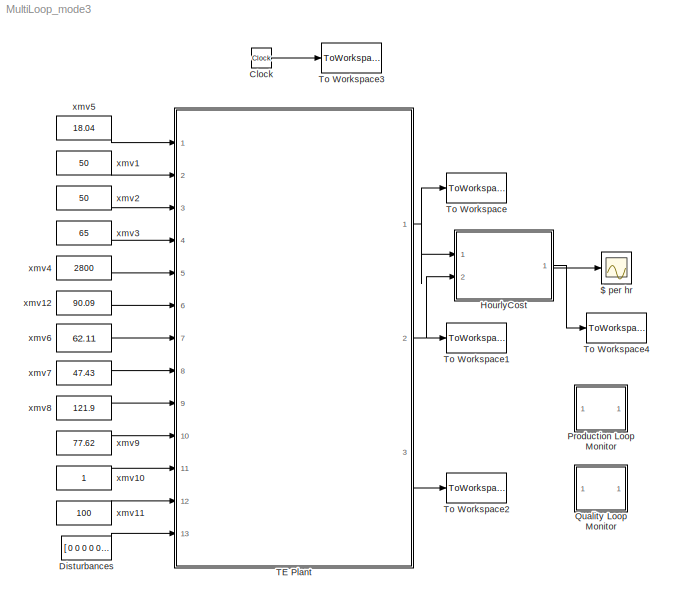
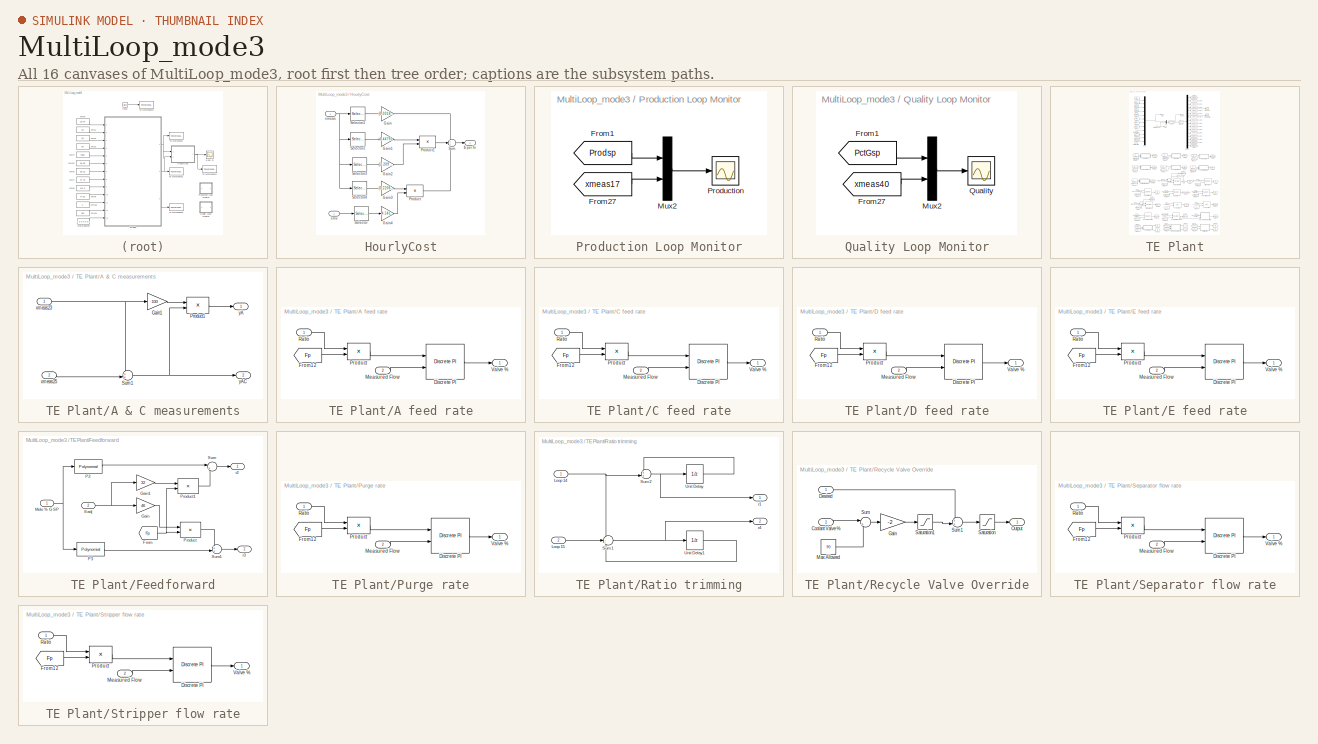
[diagram: thumbnail index - all 16 canvases of the model, root first then tree order]
MODEL MultiLoop_mode3
KIND model
CONFIG PreLoadFcn = Mode_3_Init
CONFIG StopFcn = TEplot
BLOCK [Scope] $ per hr
  DataFormat = Array
  LimitDataPoints = off
  NumInputPorts = 1
  Ports = [1]
  SampleInput = on
  SampleTime = Ts_save
  SaveName = OpCost
  YMax = 275
  YMin = 25
BLOCK [Clock] Clock
  Decimation = 10
BLOCK [Constant] Disturbances
  Value = [ 0 0 0 0 0 0 0 0 zeros(1,12)]
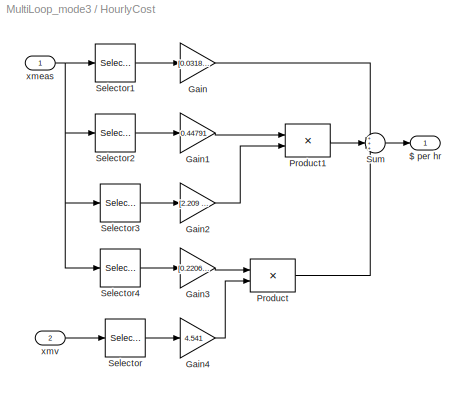
BLOCK [SubSystem] HourlyCost
  MinAlgLoopOccurrences = off
  Ports = [2, 1]
  RTWSystemCode = Auto
  TreatAsAtomicUnit = off
BLOCK [Outport] HourlyCost/$ per hr
  BusOutputAsStruct = off
  IconDisplay = Port number
BLOCK [Gain] HourlyCost/Gain
  Gain = [0.0318, 0.0536]
  Multiplication = Matrix(K*u)
BLOCK [Gain] HourlyCost/Gain1
  Gain = 0.44791
BLOCK [Gain] HourlyCost/Gain2
  Gain = [2.209 6.177 22.06 14.56 17.89 30.44 22.94]
  Multiplication = Matrix(K*u)
BLOCK [Gain] HourlyCost/Gain3
  Gain = [0.2206 0.1456 0.1789]
  Multiplication = Matrix(K*u)
BLOCK [Gain] HourlyCost/Gain4
  Gain = 4.541
BLOCK [Product] HourlyCost/Product
  InputSameDT = off
  Ports = [2, 1]
  RndMeth = Floor
BLOCK [Product] HourlyCost/Product1
  InputSameDT = off
  Ports = [2, 1]
  RndMeth = Floor
BLOCK [Selector] HourlyCost/Selector
  Elements = 8
  InputPortWidth = 12
  Ports = [1, 1]
BLOCK [Selector] HourlyCost/Selector1
  Elements = [19 20]
  InputPortWidth = 41
  Ports = [1, 1]
BLOCK [Selector] HourlyCost/Selector2
  Elements = [10]
  InputPortWidth = 41
  Ports = [1, 1]
BLOCK [Selector] HourlyCost/Selector3
  Elements = [29, 31:36]
  InputPortWidth = 41
  Ports = [1, 1]
BLOCK [Selector] HourlyCost/Selector4
  Elements = [37:39]
  InputPortWidth = 41
  Ports = [1, 1]
BLOCK [Sum] HourlyCost/Sum
  IconShape = round
  InputSameDT = off
  Inputs = +++
  OutDataTypeMode = Inherit via internal rule
  Ports = [3, 1]
BLOCK [Inport] HourlyCost/xmeas
  IconDisplay = Port number
  LatchInput = off
  Port = 1
  PortDimensions = 41
BLOCK [Inport] HourlyCost/xmv
  IconDisplay = Port number
  LatchInput = off
  Port = 2
  PortDimensions = 12
BLOCK [SubSystem] Production Loop Monitor
  MinAlgLoopOccurrences = off
  Ports = []
  RTWSystemCode = Auto
  TreatAsAtomicUnit = off
BLOCK [From] Production Loop Monitor/From1
  CloseFcn = tagdialog Close
  GotoTag = Prodsp
BLOCK [From] Production Loop Monitor/From27
  CloseFcn = tagdialog Close
  GotoTag = xmeas17
BLOCK [Mux] Production Loop Monitor/Mux2
  DisplayOption = bar
  Inputs = 2
  Ports = [2, 1]
BLOCK [Scope] Production Loop Monitor/Production
  DataFormat = StructureWithTime
  LimitDataPoints = off
  NumInputPorts = 1
  Ports = [1]
  SampleInput = on
  SampleTime = Ts_save
  SaveName = Production
  SaveToWorkspace = on
  YMax = 28
  YMin = 20
BLOCK [SubSystem] Quality Loop Monitor
  MinAlgLoopOccurrences = off
  Ports = []
  RTWSystemCode = Auto
  TreatAsAtomicUnit = off
BLOCK [From] Quality Loop Monitor/From1
  CloseFcn = tagdialog Close
  GotoTag = PctGsp
BLOCK [From] Quality Loop Monitor/From27
  CloseFcn = tagdialog Close
  GotoTag = xmeas40
BLOCK [Mux] Quality Loop Monitor/Mux2
  DisplayOption = bar
  Inputs = 2
  Ports = [2, 1]
BLOCK [Scope] Quality Loop Monitor/Quality
  DataFormat = StructureWithTime
  LimitDataPoints = off
  NumInputPorts = 1
  Ports = [1]
  SampleInput = on
  SampleTime = Ts_save
  SaveName = Quality
  SaveToWorkspace = on
  YMax = 60
  YMin = 40
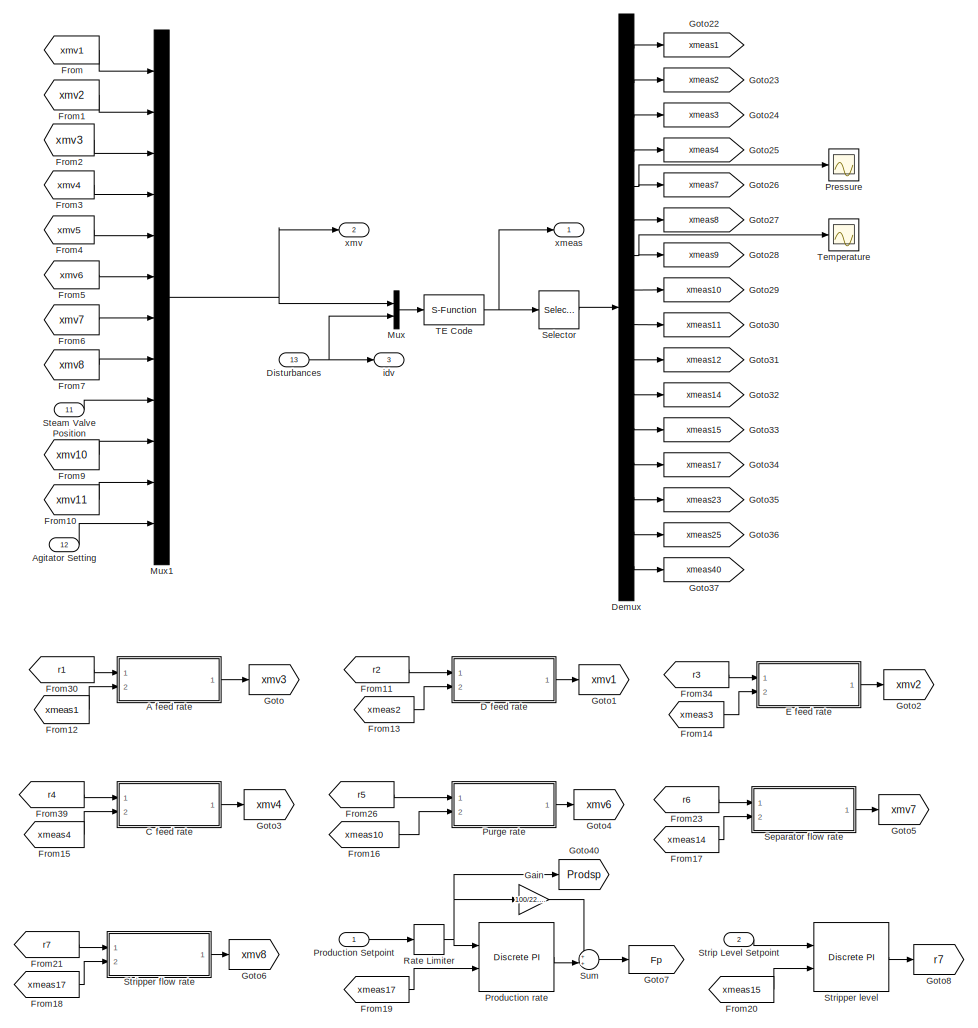
[diagram: TE Plant - part 1/2, full width, middle band]
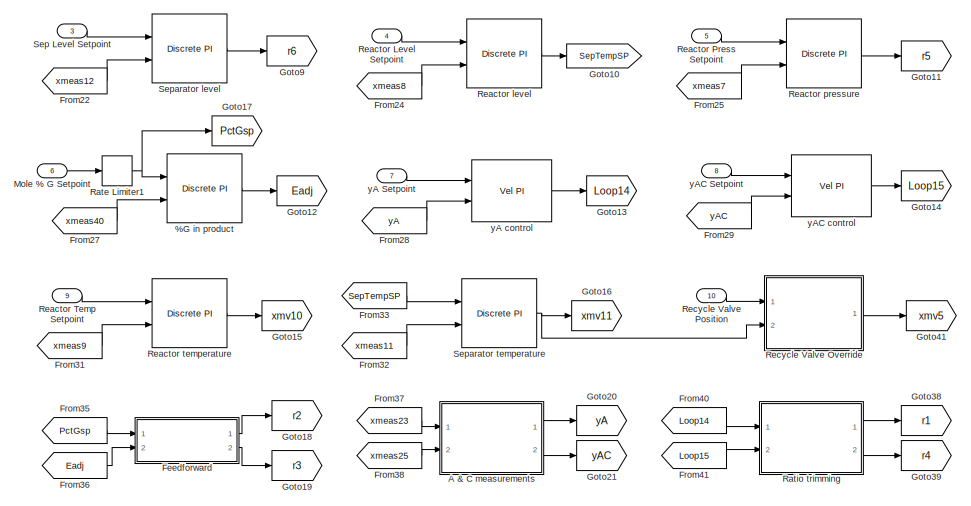
[diagram: TE Plant - part 2/2, full width, bottom band]
BLOCK [SubSystem] TE Plant
  MinAlgLoopOccurrences = off
  Ports = [13, 3]
  RTWSystemCode = Auto
  TreatAsAtomicUnit = off
BLOCK [Reference] TE Plant/%G in product  REF=TElib/Discrete PI
  Hi = inf
  Kc = -0.4
  Lo = -inf
  Ports = [2, 1]
  ShowPortLabels = on
  SourceBlock = TElib/Discrete PI
  SourceType = Unknown
  Ti = 100/60
  Ts = Ts_base
  x0 = Eadj_0
BLOCK [SubSystem] TE Plant/A & C measurements
  MinAlgLoopOccurrences = off
  Ports = [2, 2]
  RTWSystemCode = Auto
  TreatAsAtomicUnit = off
BLOCK [Gain] TE Plant/A & C measurements/Gain1
  Gain = 100
BLOCK [Product] TE Plant/A & C measurements/Product1
  InputSameDT = off
  Inputs = */
  Ports = [2, 1]
  RndMeth = Floor
BLOCK [Sum] TE Plant/A & C measurements/Sum1
  IconShape = round
  InputSameDT = off
  Inputs = ++|
  OutDataTypeMode = Inherit via internal rule
  Ports = [2, 1]
BLOCK [Inport] TE Plant/A & C measurements/xmeas23
  IconDisplay = Port number
  LatchInput = off
  Port = 1
BLOCK [Inport] TE Plant/A & C measurements/xmeas25
  IconDisplay = Port number
  LatchInput = off
  Port = 2
BLOCK [Outport] TE Plant/A & C measurements/yA
  BusOutputAsStruct = off
  IconDisplay = Port number
BLOCK [Outport] TE Plant/A & C measurements/yAC
  BusOutputAsStruct = off
  IconDisplay = Port number
  Port = 2
BLOCK [SubSystem] TE Plant/A feed rate
  MinAlgLoopOccurrences = off
  Ports = [2, 1]
  RTWSystemCode = Auto
  TreatAsAtomicUnit = off
BLOCK [Reference] TE Plant/A feed rate/Discrete PI  REF=TElib/Discrete PI
  Hi = 100
  Kc = 0.01
  Lo = 0
  Ports = [2, 1]
  ShowPortLabels = on
  SourceBlock = TElib/Discrete PI
  SourceType = Unknown
  Ti = 0.001/60
  Ts = Ts_base
  x0 = xmv3_0
BLOCK [From] TE Plant/A feed rate/From12
  CloseFcn = tagdialog Close
  GotoTag = Fp
BLOCK [Inport] TE Plant/A feed rate/Measured Flow
  IconDisplay = Port number
  LatchInput = off
  Port = 2
BLOCK [Product] TE Plant/A feed rate/Product
  InputSameDT = off
  Ports = [2, 1]
  RndMeth = Floor
BLOCK [Inport] TE Plant/A feed rate/Ratio
  IconDisplay = Port number
  LatchInput = off
  Port = 1
BLOCK [Outport] TE Plant/A feed rate/Valve %
  BusOutputAsStruct = off
  IconDisplay = Port number
BLOCK [Inport] TE Plant/Agitator Setting
  IconDisplay = Port number
  LatchInput = off
  Port = 12
BLOCK [SubSystem] TE Plant/C feed rate
  MinAlgLoopOccurrences = off
  Ports = [2, 1]
  RTWSystemCode = Auto
  TreatAsAtomicUnit = off
BLOCK [Reference] TE Plant/C feed rate/Discrete PI  REF=TElib/Discrete PI
  Hi = 100
  Kc = 0.003
  Lo = 0
  Ports = [2, 1]
  ShowPortLabels = on
  SourceBlock = TElib/Discrete PI
  SourceType = Unknown
  Ti = 0.001/60
  Ts = Ts_base
  x0 = xmv4_0
BLOCK [From] TE Plant/C feed rate/From12
  CloseFcn = tagdialog Close
  GotoTag = Fp
BLOCK [Inport] TE Plant/C feed rate/Measured Flow
  IconDisplay = Port number
  LatchInput = off
  Port = 2
BLOCK [Product] TE Plant/C feed rate/Product
  InputSameDT = off
  Ports = [2, 1]
  RndMeth = Floor
BLOCK [Inport] TE Plant/C feed rate/Ratio
  IconDisplay = Port number
  LatchInput = off
  Port = 1
BLOCK [Outport] TE Plant/C feed rate/Valve %
  BusOutputAsStruct = off
  IconDisplay = Port number
BLOCK [SubSystem] TE Plant/D feed rate
  MinAlgLoopOccurrences = off
  Ports = [2, 1]
  RTWSystemCode = Auto
  TreatAsAtomicUnit = off
BLOCK [Reference] TE Plant/D feed rate/Discrete PI  REF=TElib/Discrete PI
  Hi = 100
  Kc = 1.6e-6
  Lo = 0
  Ports = [2, 1]
  ShowPortLabels = on
  SourceBlock = TElib/Discrete PI
  SourceType = Unknown
  Ti = 0.001/60
  Ts = Ts_base
  x0 = xmv1_0
BLOCK [From] TE Plant/D feed rate/From12
  CloseFcn = tagdialog Close
  GotoTag = Fp
BLOCK [Inport] TE Plant/D feed rate/Measured Flow
  IconDisplay = Port number
  LatchInput = off
  Port = 2
BLOCK [Product] TE Plant/D feed rate/Product
  InputSameDT = off
  Ports = [2, 1]
  RndMeth = Floor
BLOCK [Inport] TE Plant/D feed rate/Ratio
  IconDisplay = Port number
  LatchInput = off
  Port = 1
BLOCK [Outport] TE Plant/D feed rate/Valve %
  BusOutputAsStruct = off
  IconDisplay = Port number
BLOCK [Demux] TE Plant/Demux
  Outputs = 16
  Ports = [1, 16]
BLOCK [Inport] TE Plant/Disturbances
  IconDisplay = Port number
  LatchInput = off
  Port = 13
BLOCK [SubSystem] TE Plant/E feed rate
  MinAlgLoopOccurrences = off
  Ports = [2, 1]
  RTWSystemCode = Auto
  TreatAsAtomicUnit = off
BLOCK [Reference] TE Plant/E feed rate/Discrete PI  REF=TElib/Discrete PI
  Hi = 100
  Kc = 1.8e-6
  Lo = 0
  Ports = [2, 1]
  ShowPortLabels = on
  SourceBlock = TElib/Discrete PI
  SourceType = Unknown
  Ti = 0.001/60
  Ts = Ts_base
  x0 = xmv2_0
BLOCK [From] TE Plant/E feed rate/From12
  CloseFcn = tagdialog Close
  GotoTag = Fp
BLOCK [Inport] TE Plant/E feed rate/Measured Flow
  IconDisplay = Port number
  LatchInput = off
  Port = 2
BLOCK [Product] TE Plant/E feed rate/Product
  InputSameDT = off
  Ports = [2, 1]
  RndMeth = Floor
BLOCK [Inport] TE Plant/E feed rate/Ratio
  IconDisplay = Port number
  LatchInput = off
  Port = 1
BLOCK [Outport] TE Plant/E feed rate/Valve %
  BusOutputAsStruct = off
  IconDisplay = Port number
BLOCK [SubSystem] TE Plant/Feedforward
  MinAlgLoopOccurrences = off
  Ports = [2, 2]
  RTWSystemCode = Auto
  TreatAsAtomicUnit = off
BLOCK [Inport] TE Plant/Feedforward/Eadj
  IconDisplay = Port number
  LatchInput = off
  Port = 2
BLOCK [From] TE Plant/Feedforward/From
  CloseFcn = tagdialog Close
  GotoTag = Fp
BLOCK [Gain] TE Plant/Feedforward/Gain
  Gain = 46
BLOCK [Gain] TE Plant/Feedforward/Gain1
  Gain = 32
BLOCK [Inport] TE Plant/Feedforward/Mole % G SP
  IconDisplay = Port number
  LatchInput = off
  Port = 1
BLOCK [Reference] TE Plant/Feedforward/P2  REF=simulink/Math\nOperations/Polynomial
  Ports = [1, 1]
  SourceBlock = simulink/Math\nOperations/Polynomial
  SourceType = Polyval
  coefs = [1.5192e-003  5.9446e-001  2.7690e-001]
BLOCK [Reference] TE Plant/Feedforward/P3  REF=simulink/Math\nOperations/Polynomial
  Ports = [1, 1]
  SourceBlock = simulink/Math\nOperations/Polynomial
  SourceType = Polyval
  coefs = [-1.1377e-003 -8.0893e-001  9.1060e+001]
BLOCK [Product] TE Plant/Feedforward/Product
  InputSameDT = off
  Inputs = */
  Ports = [2, 1]
  RndMeth = Floor
BLOCK [Product] TE Plant/Feedforward/Product1
  InputSameDT = off
  Inputs = */
  Ports = [2, 1]
  RndMeth = Floor
BLOCK [Sum] TE Plant/Feedforward/Sum
  IconShape = round
  InputSameDT = off
  Inputs = |+-
  OutDataTypeMode = Inherit via internal rule
  Ports = [2, 1]
BLOCK [Sum] TE Plant/Feedforward/Sum1
  IconShape = round
  InputSameDT = off
  Inputs = ++|
  OutDataTypeMode = Inherit via internal rule
  Ports = [2, 1]
BLOCK [Outport] TE Plant/Feedforward/r2
  BusOutputAsStruct = off
  IconDisplay = Port number
BLOCK [Outport] TE Plant/Feedforward/r3
  BusOutputAsStruct = off
  IconDisplay = Port number
  Port = 2
BLOCK [From] TE Plant/From
  CloseFcn = tagdialog Close
  GotoTag = xmv1
BLOCK [From] TE Plant/From1
  CloseFcn = tagdialog Close
  GotoTag = xmv2
BLOCK [From] TE Plant/From10
  CloseFcn = tagdialog Close
  GotoTag = xmv11
BLOCK [From] TE Plant/From11
  CloseFcn = tagdialog Close
  GotoTag = r2
BLOCK [From] TE Plant/From12
  CloseFcn = tagdialog Close
  GotoTag = xmeas1
BLOCK [From] TE Plant/From13
  CloseFcn = tagdialog Close
  GotoTag = xmeas2
BLOCK [From] TE Plant/From14
  CloseFcn = tagdialog Close
  GotoTag = xmeas3
BLOCK [From] TE Plant/From15
  CloseFcn = tagdialog Close
  GotoTag = xmeas4
BLOCK [From] TE Plant/From16
  CloseFcn = tagdialog Close
  GotoTag = xmeas10
BLOCK [From] TE Plant/From17
  CloseFcn = tagdialog Close
  GotoTag = xmeas14
BLOCK [From] TE Plant/From18
  CloseFcn = tagdialog Close
  GotoTag = xmeas17
BLOCK [From] TE Plant/From19
  CloseFcn = tagdialog Close
  GotoTag = xmeas17
BLOCK [From] TE Plant/From2
  CloseFcn = tagdialog Close
  GotoTag = xmv3
BLOCK [From] TE Plant/From20
  CloseFcn = tagdialog Close
  GotoTag = xmeas15
BLOCK [From] TE Plant/From21
  CloseFcn = tagdialog Close
  GotoTag = r7
BLOCK [From] TE Plant/From22
  CloseFcn = tagdialog Close
  GotoTag = xmeas12
BLOCK [From] TE Plant/From23
  CloseFcn = tagdialog Close
  GotoTag = r6
BLOCK [From] TE Plant/From24
  CloseFcn = tagdialog Close
  GotoTag = xmeas8
BLOCK [From] TE Plant/From25
  CloseFcn = tagdialog Close
  GotoTag = xmeas7
BLOCK [From] TE Plant/From26
  CloseFcn = tagdialog Close
  GotoTag = r5
BLOCK [From] TE Plant/From27
  CloseFcn = tagdialog Close
  GotoTag = xmeas40
BLOCK [From] TE Plant/From28
  CloseFcn = tagdialog Close
  GotoTag = yA
BLOCK [From] TE Plant/From29
  CloseFcn = tagdialog Close
  GotoTag = yAC
BLOCK [From] TE Plant/From3
  CloseFcn = tagdialog Close
  GotoTag = xmv4
BLOCK [From] TE Plant/From30
  CloseFcn = tagdialog Close
  GotoTag = r1
BLOCK [From] TE Plant/From31
  CloseFcn = tagdialog Close
  GotoTag = xmeas9
BLOCK [From] TE Plant/From32
  CloseFcn = tagdialog Close
  GotoTag = xmeas11
BLOCK [From] TE Plant/From33
  CloseFcn = tagdialog Close
  GotoTag = SepTempSP
BLOCK [From] TE Plant/From34
  CloseFcn = tagdialog Close
  GotoTag = r3
BLOCK [From] TE Plant/From35
  CloseFcn = tagdialog Close
  GotoTag = PctGsp
BLOCK [From] TE Plant/From36
  CloseFcn = tagdialog Close
  GotoTag = Eadj
BLOCK [From] TE Plant/From37
  CloseFcn = tagdialog Close
  GotoTag = xmeas23
BLOCK [From] TE Plant/From38
  CloseFcn = tagdialog Close
  GotoTag = xmeas25
BLOCK [From] TE Plant/From39
  CloseFcn = tagdialog Close
  GotoTag = r4
BLOCK [From] TE Plant/From4
  CloseFcn = tagdialog Close
  GotoTag = xmv5
BLOCK [From] TE Plant/From40
  CloseFcn = tagdialog Close
  GotoTag = Loop14
BLOCK [From] TE Plant/From41
  CloseFcn = tagdialog Close
  GotoTag = Loop15
BLOCK [From] TE Plant/From5
  CloseFcn = tagdialog Close
  GotoTag = xmv6
BLOCK [From] TE Plant/From6
  CloseFcn = tagdialog Close
  GotoTag = xmv7
BLOCK [From] TE Plant/From7
  CloseFcn = tagdialog Close
  GotoTag = xmv8
BLOCK [From] TE Plant/From9
  CloseFcn = tagdialog Close
  GotoTag = xmv10
BLOCK [Gain] TE Plant/Gain
  Gain = 100/22.89
BLOCK [Goto] TE Plant/Goto
  GotoTag = xmv3
  TagVisibility = local
BLOCK [Goto] TE Plant/Goto1
  GotoTag = xmv1
  TagVisibility = local
BLOCK [Goto] TE Plant/Goto10
  GotoTag = SepTempSP
  TagVisibility = local
BLOCK [Goto] TE Plant/Goto11
  GotoTag = r5
  TagVisibility = local
BLOCK [Goto] TE Plant/Goto12
  GotoTag = Eadj
  TagVisibility = local
BLOCK [Goto] TE Plant/Goto13
  GotoTag = Loop14
  TagVisibility = local
BLOCK [Goto] TE Plant/Goto14
  GotoTag = Loop15
  TagVisibility = local
BLOCK [Goto] TE Plant/Goto15
  GotoTag = xmv10
  TagVisibility = local
BLOCK [Goto] TE Plant/Goto16
  GotoTag = xmv11
  TagVisibility = local
BLOCK [Goto] TE Plant/Goto17
  GotoTag = PctGsp
  TagVisibility = global
BLOCK [Goto] TE Plant/Goto18
  GotoTag = r2
  TagVisibility = local
BLOCK [Goto] TE Plant/Goto19
  GotoTag = r3
  TagVisibility = local
BLOCK [Goto] TE Plant/Goto2
  GotoTag = xmv2
  TagVisibility = local
BLOCK [Goto] TE Plant/Goto20
  GotoTag = yA
  TagVisibility = local
BLOCK [Goto] TE Plant/Goto21
  GotoTag = yAC
  TagVisibility = local
BLOCK [Goto] TE Plant/Goto22
  GotoTag = xmeas1
  TagVisibility = local
BLOCK [Goto] TE Plant/Goto23
  GotoTag = xmeas2
  TagVisibility = local
BLOCK [Goto] TE Plant/Goto24
  GotoTag = xmeas3
  TagVisibility = local
BLOCK [Goto] TE Plant/Goto25
  GotoTag = xmeas4
  TagVisibility = local
BLOCK [Goto] TE Plant/Goto26
  GotoTag = xmeas7
  TagVisibility = local
BLOCK [Goto] TE Plant/Goto27
  GotoTag = xmeas8
  TagVisibility = local
BLOCK [Goto] TE Plant/Goto28
  GotoTag = xmeas9
  TagVisibility = local
BLOCK [Goto] TE Plant/Goto29
  GotoTag = xmeas10
  TagVisibility = local
BLOCK [Goto] TE Plant/Goto3
  GotoTag = xmv4
  TagVisibility = local
BLOCK [Goto] TE Plant/Goto30
  GotoTag = xmeas11
  TagVisibility = local
BLOCK [Goto] TE Plant/Goto31
  GotoTag = xmeas12
  TagVisibility = local
BLOCK [Goto] TE Plant/Goto32
  GotoTag = xmeas14
  TagVisibility = local
BLOCK [Goto] TE Plant/Goto33
  GotoTag = xmeas15
  TagVisibility = local
BLOCK [Goto] TE Plant/Goto34
  GotoTag = xmeas17
  TagVisibility = global
BLOCK [Goto] TE Plant/Goto35
  GotoTag = xmeas23
  TagVisibility = local
BLOCK [Goto] TE Plant/Goto36
  GotoTag = xmeas25
  TagVisibility = local
BLOCK [Goto] TE Plant/Goto37
  GotoTag = xmeas40
  TagVisibility = global
BLOCK [Goto] TE Plant/Goto38
  GotoTag = r1
  TagVisibility = local
BLOCK [Goto] TE Plant/Goto39
  GotoTag = r4
  TagVisibility = local
BLOCK [Goto] TE Plant/Goto4
  GotoTag = xmv6
  TagVisibility = local
BLOCK [Goto] TE Plant/Goto40
  GotoTag = Prodsp
  TagVisibility = global
BLOCK [Goto] TE Plant/Goto41
  GotoTag = xmv5
  TagVisibility = local
BLOCK [Goto] TE Plant/Goto5
  GotoTag = xmv7
  TagVisibility = local
BLOCK [Goto] TE Plant/Goto6
  GotoTag = xmv8
  TagVisibility = local
BLOCK [Goto] TE Plant/Goto7
  GotoTag = Fp
  TagVisibility = global
BLOCK [Goto] TE Plant/Goto8
  GotoTag = r7
  TagVisibility = local
BLOCK [Goto] TE Plant/Goto9
  GotoTag = r6
  TagVisibility = local
BLOCK [Inport] TE Plant/Mole % G Setpoint
  IconDisplay = Port number
  LatchInput = off
  Port = 6
BLOCK [Mux] TE Plant/Mux
  DisplayOption = bar
  Inputs = 2
  Ports = [2, 1]
BLOCK [Mux] TE Plant/Mux1
  DisplayOption = bar
  Inputs = 12
  Ports = [12, 1]
BLOCK [Scope] TE Plant/Pressure
  DataFormat = StructureWithTime
  LimitDataPoints = off
  NumInputPorts = 1
  Ports = [1]
  SampleInput = on
  SampleTime = Ts_save
  SaveName = ScopeData1
  YMax = 2900
  YMin = 2700
BLOCK [Inport] TE Plant/Production Setpoint
  IconDisplay = Port number
  LatchInput = off
  Port = 1
BLOCK [Reference] TE Plant/Production rate  REF=TElib/Discrete PI
  Hi = 30
  Kc = 3.2
  Lo = -30
  Ports = [2, 1]
  ShowPortLabels = on
  SourceBlock = TElib/Discrete PI
  SourceType = Unknown
  Ti = 120/60
  Ts = Ts_base
  x0 = 0
BLOCK [SubSystem] TE Plant/Purge rate
  MinAlgLoopOccurrences = off
  Ports = [2, 1]
  RTWSystemCode = Auto
  TreatAsAtomicUnit = off
BLOCK [Reference] TE Plant/Purge rate/Discrete PI  REF=TElib/Discrete PI
  Hi = 100
  Kc = 0.01
  Lo = 0
  Ports = [2, 1]
  ShowPortLabels = on
  SourceBlock = TElib/Discrete PI
  SourceType = Unknown
  Ti = 0.001/60
  Ts = Ts_base
  x0 = xmv6_0
BLOCK [From] TE Plant/Purge rate/From12
  CloseFcn = tagdialog Close
  GotoTag = Fp
BLOCK [Inport] TE Plant/Purge rate/Measured Flow
  IconDisplay = Port number
  LatchInput = off
  Port = 2
BLOCK [Product] TE Plant/Purge rate/Product
  InputSameDT = off
  Ports = [2, 1]
  RndMeth = Floor
BLOCK [Inport] TE Plant/Purge rate/Ratio
  IconDisplay = Port number
  LatchInput = off
  Port = 1
BLOCK [Outport] TE Plant/Purge rate/Valve %
  BusOutputAsStruct = off
  IconDisplay = Port number
BLOCK [RateLimiter] TE Plant/Rate Limiter
  FallingSlewLimit = -0.3*22.95/24
  RisingSlewLimit = 0.3*22.95/24
BLOCK [RateLimiter] TE Plant/Rate Limiter1
  FallingSlewLimit = -50/24
  RisingSlewLimit = 50/24
BLOCK [SubSystem] TE Plant/Ratio trimming
  MinAlgLoopOccurrences = off
  Ports = [2, 2]
  RTWSystemCode = Auto
  TreatAsAtomicUnit = off
BLOCK [Inport] TE Plant/Ratio trimming/Loop 14
  IconDisplay = Port number
  LatchInput = off
  Port = 1
BLOCK [Inport] TE Plant/Ratio trimming/Loop 15
  IconDisplay = Port number
  LatchInput = off
  Port = 2
BLOCK [Sum] TE Plant/Ratio trimming/Sum1
  IconShape = round
  InputSameDT = off
  Inputs = -++
  OutDataTypeMode = Inherit via internal rule
  Ports = [3, 1]
BLOCK [Sum] TE Plant/Ratio trimming/Sum2
  IconShape = round
  InputSameDT = off
  Inputs = ++|
  OutDataTypeMode = Inherit via internal rule
  Ports = [2, 1]
BLOCK [UnitDelay] TE Plant/Ratio trimming/Unit Delay
  SampleTime = 0.1
  X0 = r1_0
BLOCK [UnitDelay] TE Plant/Ratio trimming/Unit Delay1
  SampleTime = 0.1
  X0 = r4_0
BLOCK [Outport] TE Plant/Ratio trimming/r1
  BusOutputAsStruct = off
  IconDisplay = Port number
BLOCK [Outport] TE Plant/Ratio trimming/r4
  BusOutputAsStruct = off
  IconDisplay = Port number
  Port = 2
BLOCK [Inport] TE Plant/Reactor Level Setpoint
  IconDisplay = Port number
  LatchInput = off
  Port = 4
BLOCK [Inport] TE Plant/Reactor Press Setpoint
  IconDisplay = Port number
  LatchInput = off
  Port = 5
BLOCK [Inport] TE Plant/Reactor Temp Setpoint
  IconDisplay = Port number
  LatchInput = off
  Port = 9
BLOCK [Reference] TE Plant/Reactor level  REF=TElib/Discrete PI
  Hi = 120
  Kc = 0.8
  Lo = 0
  Ports = [2, 1]
  ShowPortLabels = on
  SourceBlock = TElib/Discrete PI
  SourceType = Unknown
  Ti = 60/60
  Ts = Ts_base
  x0 = SP17_0
BLOCK [Reference] TE Plant/Reactor pressure  REF=TElib/Discrete PI
  Hi = 100
  Kc = -1e-4
  Lo = 0
  Ports = [2, 1]
  ShowPortLabels = on
  SourceBlock = TElib/Discrete PI
  SourceType = Unknown
  Ti = 20/60
  Ts = Ts_base
  x0 = r5_0
BLOCK [Reference] TE Plant/Reactor temperature  REF=TElib/Discrete PI
  Hi = 100
  Kc = -8
  Lo = 0
  Ports = [2, 1]
  ShowPortLabels = on
  SourceBlock = TElib/Discrete PI
  SourceType = Unknown
  Ti = 7.5/60
  Ts = Ts_base
  x0 = xmv10_0
BLOCK [SubSystem] TE Plant/Recycle Valve Override
  AncestorBlock = TElib/Discrete PI
  MinAlgLoopOccurrences = off
  Ports = [2, 1]
  RTWSystemCode = Auto
  TreatAsAtomicUnit = off
BLOCK [Inport] TE Plant/Recycle Valve Override/Coolant Valve %
  IconDisplay = Port number
  LatchInput = off
  Port = 2
BLOCK [Inport] TE Plant/Recycle Valve Override/Desired
  IconDisplay = Port number
  LatchInput = off
  Port = 1
BLOCK [Gain] TE Plant/Recycle Valve Override/Gain
  Gain = -2
  OutDataTypeMode = Inherit via internal rule
  ParameterDataTypeMode = Inherit via internal rule
  SaturateOnIntegerOverflow = off
BLOCK [Constant] TE Plant/Recycle Valve Override/Max Allowed
  Value = 90
BLOCK [Outport] TE Plant/Recycle Valve Override/Output
  BusOutputAsStruct = off
  IconDisplay = Port number
BLOCK [Saturate] TE Plant/Recycle Valve Override/Saturation
  LowerLimit = 0
  UpperLimit = 100
BLOCK [Saturate] TE Plant/Recycle Valve Override/Saturation1
  LowerLimit = -Inf
  UpperLimit = 0
BLOCK [Sum] TE Plant/Recycle Valve Override/Sum
  IconShape = round
  InputSameDT = off
  Inputs = |+-
  OutDataTypeMode = Inherit via internal rule
  Ports = [2, 1]
BLOCK [Sum] TE Plant/Recycle Valve Override/Sum1
  IconShape = round
  InputSameDT = off
  Inputs = ++|
  OutDataTypeMode = Inherit via internal rule
  Ports = [2, 1]
  SaturateOnIntegerOverflow = off
BLOCK [Inport] TE Plant/Recycle Valve Position
  IconDisplay = Port number
  LatchInput = off
  Port = 10
BLOCK [Selector] TE Plant/Selector
  Elements = [1:4, 7:12, 14, 15, 17, 23, 25, 40]
  InputPortWidth = 41
  Ports = [1, 1]
BLOCK [Inport] TE Plant/Sep Level Setpoint
  IconDisplay = Port number
  LatchInput = off
  Port = 3
BLOCK [SubSystem] TE Plant/Separator flow rate
  MinAlgLoopOccurrences = off
  Ports = [2, 1]
  RTWSystemCode = Auto
  TreatAsAtomicUnit = off
BLOCK [Reference] TE Plant/Separator flow rate/Discrete PI  REF=TElib/Discrete PI
  Hi = 100
  Kc = 4e-4
  Lo = 0
  Ports = [2, 1]
  ShowPortLabels = on
  SourceBlock = TElib/Discrete PI
  SourceType = Unknown
  Ti = 0.001/60
  Ts = Ts_base
  x0 = xmv7_0
BLOCK [From] TE Plant/Separator flow rate/From12
  CloseFcn = tagdialog Close
  GotoTag = Fp
BLOCK [Inport] TE Plant/Separator flow rate/Measured Flow
  IconDisplay = Port number
  LatchInput = off
  Port = 2
BLOCK [Product] TE Plant/Separator flow rate/Product
  InputSameDT = off
  Ports = [2, 1]
  RndMeth = Floor
BLOCK [Inport] TE Plant/Separator flow rate/Ratio
  IconDisplay = Port number
  LatchInput = off
  Port = 1
BLOCK [Outport] TE Plant/Separator flow rate/Valve %
  BusOutputAsStruct = off
  IconDisplay = Port number
BLOCK [Reference] TE Plant/Separator level  REF=TElib/Discrete PI
  Hi = 100
  Kc = -1e-3
  Lo = 0
  Ports = [2, 1]
  ShowPortLabels = on
  SourceBlock = TElib/Discrete PI
  SourceType = Unknown
  Ti = 200/60
  Ts = Ts_base
  x0 = r6_0
BLOCK [Reference] TE Plant/Separator temperature  REF=TElib/Discrete PI
  Hi = 100
  Kc = -4
  Lo = 0
  Ports = [2, 1]
  ShowPortLabels = on
  SourceBlock = TElib/Discrete PI
  SourceType = Unknown
  Ti = 15/60
  Ts = Ts_base
  x0 = xmv11_0
BLOCK [Inport] TE Plant/Steam Valve Position
  IconDisplay = Port number
  LatchInput = off
  Port = 11
BLOCK [Inport] TE Plant/Strip Level Setpoint
  IconDisplay = Port number
  LatchInput = off
  Port = 2
BLOCK [SubSystem] TE Plant/Stripper flow rate
  MinAlgLoopOccurrences = off
  Ports = [2, 1]
  RTWSystemCode = Auto
  TreatAsAtomicUnit = off
BLOCK [Reference] TE Plant/Stripper flow rate/Discrete PI  REF=TElib/Discrete PI
  Hi = 100
  Kc = 4e-4
  Lo = 0
  Ports = [2, 1]
  ShowPortLabels = on
  SourceBlock = TElib/Discrete PI
  SourceType = Unknown
  Ti = 0.001/60
  Ts = Ts_base
  x0 = xmv8_0
BLOCK [From] TE Plant/Stripper flow rate/From12
  CloseFcn = tagdialog Close
  GotoTag = Fp
BLOCK [Inport] TE Plant/Stripper flow rate/Measured Flow
  IconDisplay = Port number
  LatchInput = off
  Port = 2
BLOCK [Product] TE Plant/Stripper flow rate/Product
  InputSameDT = off
  Ports = [2, 1]
  RndMeth = Floor
BLOCK [Inport] TE Plant/Stripper flow rate/Ratio
  IconDisplay = Port number
  LatchInput = off
  Port = 1
BLOCK [Outport] TE Plant/Stripper flow rate/Valve %
  BusOutputAsStruct = off
  IconDisplay = Port number
BLOCK [Reference] TE Plant/Stripper level  REF=TElib/Discrete PI
  Hi = 100
  Kc = -2e-4
  Lo = 0
  Ports = [2, 1]
  ShowPortLabels = on
  SourceBlock = TElib/Discrete PI
  SourceType = Unknown
  Ti = 200/60
  Ts = Ts_base
  x0 = r7_0
BLOCK [Sum] TE Plant/Sum
  IconShape = round
  InputSameDT = off
  Inputs = ++|
  OutDataTypeMode = Inherit via internal rule
  Ports = [2, 1]
BLOCK [S-Function] TE Plant/TE Code
  FunctionName = temexd
  Parameters = []
  Ports = [1, 1]
BLOCK [Scope] TE Plant/Temperature
  DataFormat = StructureWithTime
  LimitDataPoints = off
  NumInputPorts = 1
  Ports = [1]
  SampleInput = on
  SampleTime = Ts_save
  YMax = 130
  YMin = 120
BLOCK [Outport] TE Plant/idv
  BusOutputAsStruct = off
  IconDisplay = Port number
  Port = 3
BLOCK [Outport] TE Plant/xmeas
  BusOutputAsStruct = off
  IconDisplay = Port number
BLOCK [Outport] TE Plant/xmv
  BusOutputAsStruct = off
  IconDisplay = Port number
  Port = 2
BLOCK [Inport] TE Plant/yA Setpoint
  IconDisplay = Port number
  LatchInput = off
  Port = 7
BLOCK [Reference] TE Plant/yA control  REF=TElib/Discrete PI/Vel PI
  Kc = 2e-4
  Ports = [2, 1]
  ShowPortLabels = on
  SourceBlock = TElib/Discrete PI/Vel PI
  SourceType = Unknown
  Ti = 1
  Ts = 0.1
BLOCK [Inport] TE Plant/yAC Setpoint
  IconDisplay = Port number
  LatchInput = off
  Port = 8
BLOCK [Reference] TE Plant/yAC control  REF=TElib/Discrete PI/Vel PI
  Kc = 3e-4
  Ports = [2, 1]
  ShowPortLabels = on
  SourceBlock = TElib/Discrete PI/Vel PI
  SourceType = Unknown
  Ti = 2
  Ts = 0.1
BLOCK [ToWorkspace] To Workspace
  MaxDataPoints = inf
  SampleTime = Ts_save
  SaveFormat = Array
  VariableName = simout
BLOCK [ToWorkspace] To Workspace1
  MaxDataPoints = inf
  SampleTime = Ts_save
  SaveFormat = Array
  VariableName = xmv
BLOCK [ToWorkspace] To Workspace2
  MaxDataPoints = inf
  SampleTime = Ts_save
  SaveFormat = Array
  VariableName = idv
BLOCK [ToWorkspace] To Workspace3
  MaxDataPoints = inf
  SampleTime = Ts_save
  SaveFormat = Array
  VariableName = tout
BLOCK [ToWorkspace] To Workspace4
  MaxDataPoints = inf
  SampleTime = Ts_save
  SaveFormat = Array
  VariableName = OpCost
BLOCK [Constant] xmv1
  Value = 50
BLOCK [Constant] xmv10
BLOCK [Constant] xmv11
  Value = 100
BLOCK [Constant] xmv12
  Value = 90.09
BLOCK [Constant] xmv2
  Value = 50
BLOCK [Constant] xmv3
  Value = 65
BLOCK [Constant] xmv4
  Value = 2800
BLOCK [Constant] xmv5
  Value = 18.04
BLOCK [Constant] xmv6
  Value = 62.11
BLOCK [Constant] xmv7
  Value = 47.43
BLOCK [Constant] xmv8
  Value = 121.9
BLOCK [Constant] xmv9
  Value = 77.62
LINE Clock:1 -> To Workspace3:1
LINE Disturbances:1 -> TE Plant:13
LINE HourlyCost/Gain1:1 -> HourlyCost/Product1:1
LINE HourlyCost/Gain2:1 -> HourlyCost/Product1:2
LINE HourlyCost/Gain3:1 -> HourlyCost/Product:1
LINE HourlyCost/Gain4:1 -> HourlyCost/Product:2
LINE HourlyCost/Gain:1 -> HourlyCost/Sum:1
LINE HourlyCost/Product1:1 -> HourlyCost/Sum:2
LINE HourlyCost/Product:1 -> HourlyCost/Sum:3
LINE HourlyCost/Selector1:1 -> HourlyCost/Gain:1
LINE HourlyCost/Selector2:1 -> HourlyCost/Gain1:1
LINE HourlyCost/Selector3:1 -> HourlyCost/Gain2:1
LINE HourlyCost/Selector4:1 -> HourlyCost/Gain3:1
LINE HourlyCost/Selector:1 -> HourlyCost/Gain4:1
LINE HourlyCost/Sum:1 -> HourlyCost/$ per hr:1
NET HourlyCost/xmeas:1 -> HourlyCost/Selector1:1, HourlyCost/Selector2:1, HourlyCost/Selector3:1, HourlyCost/Selector4:1
LINE HourlyCost/xmv:1 -> HourlyCost/Selector:1
NET HourlyCost:1 -> $ per hr:1, To Workspace4:1
LINE Production Loop Monitor/From1:1 -> Production Loop Monitor/Mux2:1
LINE Production Loop Monitor/From27:1 -> Production Loop Monitor/Mux2:2
LINE Production Loop Monitor/Mux2:1 -> Production Loop Monitor/Production:1
LINE Quality Loop Monitor/From1:1 -> Quality Loop Monitor/Mux2:1
LINE Quality Loop Monitor/From27:1 -> Quality Loop Monitor/Mux2:2
LINE Quality Loop Monitor/Mux2:1 -> Quality Loop Monitor/Quality:1
LINE TE Plant/%G in product:1 -> TE Plant/Goto12:1
LINE TE Plant/A & C measurements/Gain1:1 -> TE Plant/A & C measurements/Product1:1
LINE TE Plant/A & C measurements/Product1:1 -> TE Plant/A & C measurements/yA:1
NET TE Plant/A & C measurements/Sum1:1 -> TE Plant/A & C measurements/Product1:2, TE Plant/A & C measurements/yAC:1
NET TE Plant/A & C measurements/xmeas23:1 -> TE Plant/A & C measurements/Gain1:1, TE Plant/A & C measurements/Sum1:1
LINE TE Plant/A & C measurements/xmeas25:1 -> TE Plant/A & C measurements/Sum1:2
LINE TE Plant/A & C measurements:1 -> TE Plant/Goto20:1
LINE TE Plant/A & C measurements:2 -> TE Plant/Goto21:1
LINE TE Plant/A feed rate/Discrete PI:1 -> TE Plant/A feed rate/Valve %:1
LINE TE Plant/A feed rate/From12:1 -> TE Plant/A feed rate/Product:2
LINE TE Plant/A feed rate/Measured Flow:1 -> TE Plant/A feed rate/Discrete PI:2
LINE TE Plant/A feed rate/Product:1 -> TE Plant/A feed rate/Discrete PI:1
LINE TE Plant/A feed rate/Ratio:1 -> TE Plant/A feed rate/Product:1
LINE TE Plant/A feed rate:1 -> TE Plant/Goto:1
LINE TE Plant/Agitator Setting:1 -> TE Plant/Mux1:12
LINE TE Plant/C feed rate/Discrete PI:1 -> TE Plant/C feed rate/Valve %:1
LINE TE Plant/C feed rate/From12:1 -> TE Plant/C feed rate/Product:2
LINE TE Plant/C feed rate/Measured Flow:1 -> TE Plant/C feed rate/Discrete PI:2
LINE TE Plant/C feed rate/Product:1 -> TE Plant/C feed rate/Discrete PI:1
LINE TE Plant/C feed rate/Ratio:1 -> TE Plant/C feed rate/Product:1
LINE TE Plant/C feed rate:1 -> TE Plant/Goto3:1
LINE TE Plant/D feed rate/Discrete PI:1 -> TE Plant/D feed rate/Valve %:1
LINE TE Plant/D feed rate/From12:1 -> TE Plant/D feed rate/Product:2
LINE TE Plant/D feed rate/Measured Flow:1 -> TE Plant/D feed rate/Discrete PI:2
LINE TE Plant/D feed rate/Product:1 -> TE Plant/D feed rate/Discrete PI:1
LINE TE Plant/D feed rate/Ratio:1 -> TE Plant/D feed rate/Product:1
LINE TE Plant/D feed rate:1 -> TE Plant/Goto1:1
LINE TE Plant/Demux:1 -> TE Plant/Goto22:1
LINE TE Plant/Demux:10 -> TE Plant/Goto31:1
LINE TE Plant/Demux:11 -> TE Plant/Goto32:1
LINE TE Plant/Demux:12 -> TE Plant/Goto33:1
LINE TE Plant/Demux:13 -> TE Plant/Goto34:1
LINE TE Plant/Demux:14 -> TE Plant/Goto35:1
LINE TE Plant/Demux:15 -> TE Plant/Goto36:1
LINE TE Plant/Demux:16 -> TE Plant/Goto37:1
LINE TE Plant/Demux:2 -> TE Plant/Goto23:1
LINE TE Plant/Demux:3 -> TE Plant/Goto24:1
LINE TE Plant/Demux:4 -> TE Plant/Goto25:1
NET TE Plant/Demux:5 -> TE Plant/Goto26:1, TE Plant/Pressure:1
LINE TE Plant/Demux:6 -> TE Plant/Goto27:1
NET TE Plant/Demux:7 -> TE Plant/Goto28:1, TE Plant/Temperature:1
LINE TE Plant/Demux:8 -> TE Plant/Goto29:1
LINE TE Plant/Demux:9 -> TE Plant/Goto30:1
NET TE Plant/Disturbances:1 -> TE Plant/Mux:2, TE Plant/idv:1
LINE TE Plant/E feed rate/Discrete PI:1 -> TE Plant/E feed rate/Valve %:1
LINE TE Plant/E feed rate/From12:1 -> TE Plant/E feed rate/Product:2
LINE TE Plant/E feed rate/Measured Flow:1 -> TE Plant/E feed rate/Discrete PI:2
LINE TE Plant/E feed rate/Product:1 -> TE Plant/E feed rate/Discrete PI:1
LINE TE Plant/E feed rate/Ratio:1 -> TE Plant/E feed rate/Product:1
LINE TE Plant/E feed rate:1 -> TE Plant/Goto2:1
NET TE Plant/Feedforward/Eadj:1 -> TE Plant/Feedforward/Gain1:1, TE Plant/Feedforward/Gain:1
NET TE Plant/Feedforward/From:1 -> TE Plant/Feedforward/Product1:2, TE Plant/Feedforward/Product:2
LINE TE Plant/Feedforward/Gain1:1 -> TE Plant/Feedforward/Product1:1
LINE TE Plant/Feedforward/Gain:1 -> TE Plant/Feedforward/Product:1
NET TE Plant/Feedforward/Mole % G SP:1 -> TE Plant/Feedforward/P2:1, TE Plant/Feedforward/P3:1
LINE TE Plant/Feedforward/P2:1 -> TE Plant/Feedforward/Sum:1
LINE TE Plant/Feedforward/P3:1 -> TE Plant/Feedforward/Sum1:2
LINE TE Plant/Feedforward/Product1:1 -> TE Plant/Feedforward/Sum:2
LINE TE Plant/Feedforward/Product:1 -> TE Plant/Feedforward/Sum1:1
LINE TE Plant/Feedforward/Sum1:1 -> TE Plant/Feedforward/r3:1
LINE TE Plant/Feedforward/Sum:1 -> TE Plant/Feedforward/r2:1
LINE TE Plant/Feedforward:1 -> TE Plant/Goto18:1
LINE TE Plant/Feedforward:2 -> TE Plant/Goto19:1
LINE TE Plant/From10:1 -> TE Plant/Mux1:11
LINE TE Plant/From11:1 -> TE Plant/D feed rate:1
LINE TE Plant/From12:1 -> TE Plant/A feed rate:2
LINE TE Plant/From13:1 -> TE Plant/D feed rate:2
LINE TE Plant/From14:1 -> TE Plant/E feed rate:2
LINE TE Plant/From15:1 -> TE Plant/C feed rate:2
LINE TE Plant/From16:1 -> TE Plant/Purge rate:2
LINE TE Plant/From17:1 -> TE Plant/Separator flow rate:2
LINE TE Plant/From18:1 -> TE Plant/Stripper flow rate:2
LINE TE Plant/From19:1 -> TE Plant/Production rate:2
LINE TE Plant/From1:1 -> TE Plant/Mux1:2
LINE TE Plant/From20:1 -> TE Plant/Stripper level:2
LINE TE Plant/From21:1 -> TE Plant/Stripper flow rate:1
LINE TE Plant/From22:1 -> TE Plant/Separator level:2
LINE TE Plant/From23:1 -> TE Plant/Separator flow rate:1
LINE TE Plant/From24:1 -> TE Plant/Reactor level:2
LINE TE Plant/From25:1 -> TE Plant/Reactor pressure:2
LINE TE Plant/From26:1 -> TE Plant/Purge rate:1
LINE TE Plant/From27:1 -> TE Plant/%G in product:2
LINE TE Plant/From28:1 -> TE Plant/yA control:2
LINE TE Plant/From29:1 -> TE Plant/yAC control:2
LINE TE Plant/From2:1 -> TE Plant/Mux1:3
LINE TE Plant/From30:1 -> TE Plant/A feed rate:1
LINE TE Plant/From31:1 -> TE Plant/Reactor temperature:2
LINE TE Plant/From32:1 -> TE Plant/Separator temperature:2
LINE TE Plant/From33:1 -> TE Plant/Separator temperature:1
LINE TE Plant/From34:1 -> TE Plant/E feed rate:1
LINE TE Plant/From35:1 -> TE Plant/Feedforward:1
LINE TE Plant/From36:1 -> TE Plant/Feedforward:2
LINE TE Plant/From37:1 -> TE Plant/A & C measurements:1
LINE TE Plant/From38:1 -> TE Plant/A & C measurements:2
LINE TE Plant/From39:1 -> TE Plant/C feed rate:1
LINE TE Plant/From3:1 -> TE Plant/Mux1:4
LINE TE Plant/From40:1 -> TE Plant/Ratio trimming:1
LINE TE Plant/From41:1 -> TE Plant/Ratio trimming:2
LINE TE Plant/From4:1 -> TE Plant/Mux1:5
LINE TE Plant/From5:1 -> TE Plant/Mux1:6
LINE TE Plant/From6:1 -> TE Plant/Mux1:7
LINE TE Plant/From7:1 -> TE Plant/Mux1:8
LINE TE Plant/From9:1 -> TE Plant/Mux1:10
LINE TE Plant/From:1 -> TE Plant/Mux1:1
LINE TE Plant/Gain:1 -> TE Plant/Sum:1
LINE TE Plant/Mole % G Setpoint:1 -> TE Plant/Rate Limiter1:1
NET TE Plant/Mux1:1 -> TE Plant/Mux:1, TE Plant/xmv:1
LINE TE Plant/Mux:1 -> TE Plant/TE Code:1
LINE TE Plant/Production Setpoint:1 -> TE Plant/Rate Limiter:1
LINE TE Plant/Production rate:1 -> TE Plant/Sum:2
LINE TE Plant/Purge rate/Discrete PI:1 -> TE Plant/Purge rate/Valve %:1
LINE TE Plant/Purge rate/From12:1 -> TE Plant/Purge rate/Product:2
LINE TE Plant/Purge rate/Measured Flow:1 -> TE Plant/Purge rate/Discrete PI:2
LINE TE Plant/Purge rate/Product:1 -> TE Plant/Purge rate/Discrete PI:1
LINE TE Plant/Purge rate/Ratio:1 -> TE Plant/Purge rate/Product:1
LINE TE Plant/Purge rate:1 -> TE Plant/Goto4:1
NET TE Plant/Rate Limiter1:1 -> TE Plant/%G in product:1, TE Plant/Goto17:1
NET TE Plant/Rate Limiter:1 -> TE Plant/Gain:1, TE Plant/Goto40:1, TE Plant/Production rate:1
NET TE Plant/Ratio trimming/Loop 14:1 -> TE Plant/Ratio trimming/Sum1:1, TE Plant/Ratio trimming/Sum2:2
LINE TE Plant/Ratio trimming/Loop 15:1 -> TE Plant/Ratio trimming/Sum1:2
NET TE Plant/Ratio trimming/Sum1:1 -> TE Plant/Ratio trimming/Unit Delay1:1, TE Plant/Ratio trimming/r4:1
NET TE Plant/Ratio trimming/Sum2:1 -> TE Plant/Ratio trimming/Unit Delay:1, TE Plant/Ratio trimming/r1:1
LINE TE Plant/Ratio trimming/Unit Delay1:1 -> TE Plant/Ratio trimming/Sum1:3
LINE TE Plant/Ratio trimming/Unit Delay:1 -> TE Plant/Ratio trimming/Sum2:1
LINE TE Plant/Ratio trimming:1 -> TE Plant/Goto38:1
LINE TE Plant/Ratio trimming:2 -> TE Plant/Goto39:1
LINE TE Plant/Reactor Level Setpoint:1 -> TE Plant/Reactor level:1
LINE TE Plant/Reactor Press Setpoint:1 -> TE Plant/Reactor pressure:1
LINE TE Plant/Reactor Temp Setpoint:1 -> TE Plant/Reactor temperature:1
LINE TE Plant/Reactor level:1 -> TE Plant/Goto10:1
LINE TE Plant/Reactor pressure:1 -> TE Plant/Goto11:1
LINE TE Plant/Reactor temperature:1 -> TE Plant/Goto15:1
LINE TE Plant/Recycle Valve Override/Coolant Valve %:1 -> TE Plant/Recycle Valve Override/Sum:1
LINE TE Plant/Recycle Valve Override/Desired:1 -> TE Plant/Recycle Valve Override/Sum1:1
LINE TE Plant/Recycle Valve Override/Gain:1 -> TE Plant/Recycle Valve Override/Saturation1:1
LINE TE Plant/Recycle Valve Override/Max Allowed:1 -> TE Plant/Recycle Valve Override/Sum:2
LINE TE Plant/Recycle Valve Override/Saturation1:1 -> TE Plant/Recycle Valve Override/Sum1:2
LINE TE Plant/Recycle Valve Override/Saturation:1 -> TE Plant/Recycle Valve Override/Output:1
LINE TE Plant/Recycle Valve Override/Sum1:1 -> TE Plant/Recycle Valve Override/Saturation:1
LINE TE Plant/Recycle Valve Override/Sum:1 -> TE Plant/Recycle Valve Override/Gain:1
LINE TE Plant/Recycle Valve Override:1 -> TE Plant/Goto41:1
LINE TE Plant/Recycle Valve Position:1 -> TE Plant/Recycle Valve Override:1
LINE TE Plant/Selector:1 -> TE Plant/Demux:1
LINE TE Plant/Sep Level Setpoint:1 -> TE Plant/Separator level:1
LINE TE Plant/Separator flow rate/Discrete PI:1 -> TE Plant/Separator flow rate/Valve %:1
LINE TE Plant/Separator flow rate/From12:1 -> TE Plant/Separator flow rate/Product:2
LINE TE Plant/Separator flow rate/Measured Flow:1 -> TE Plant/Separator flow rate/Discrete PI:2
LINE TE Plant/Separator flow rate/Product:1 -> TE Plant/Separator flow rate/Discrete PI:1
LINE TE Plant/Separator flow rate/Ratio:1 -> TE Plant/Separator flow rate/Product:1
LINE TE Plant/Separator flow rate:1 -> TE Plant/Goto5:1
LINE TE Plant/Separator level:1 -> TE Plant/Goto9:1
NET TE Plant/Separator temperature:1 -> TE Plant/Goto16:1, TE Plant/Recycle Valve Override:2
LINE TE Plant/Steam Valve Position:1 -> TE Plant/Mux1:9
LINE TE Plant/Strip Level Setpoint:1 -> TE Plant/Stripper level:1
LINE TE Plant/Stripper flow rate/Discrete PI:1 -> TE Plant/Stripper flow rate/Valve %:1
LINE TE Plant/Stripper flow rate/From12:1 -> TE Plant/Stripper flow rate/Product:2
LINE TE Plant/Stripper flow rate/Measured Flow:1 -> TE Plant/Stripper flow rate/Discrete PI:2
LINE TE Plant/Stripper flow rate/Product:1 -> TE Plant/Stripper flow rate/Discrete PI:1
LINE TE Plant/Stripper flow rate/Ratio:1 -> TE Plant/Stripper flow rate/Product:1
LINE TE Plant/Stripper flow rate:1 -> TE Plant/Goto6:1
LINE TE Plant/Stripper level:1 -> TE Plant/Goto8:1
LINE TE Plant/Sum:1 -> TE Plant/Goto7:1
NET TE Plant/TE Code:1 -> TE Plant/Selector:1, TE Plant/xmeas:1
LINE TE Plant/yA Setpoint:1 -> TE Plant/yA control:1
LINE TE Plant/yA control:1 -> TE Plant/Goto13:1
LINE TE Plant/yAC Setpoint:1 -> TE Plant/yAC control:1
LINE TE Plant/yAC control:1 -> TE Plant/Goto14:1
NET TE Plant:1 -> HourlyCost:1, To Workspace:1
NET TE Plant:2 -> HourlyCost:2, To Workspace1:1
LINE TE Plant:3 -> To Workspace2:1
LINE xmv10:1 -> TE Plant:11
LINE xmv11:1 -> TE Plant:12
LINE xmv12:1 -> TE Plant:6
LINE xmv1:1 -> TE Plant:2
LINE xmv2:1 -> TE Plant:3
LINE xmv3:1 -> TE Plant:4
LINE xmv4:1 -> TE Plant:5
LINE xmv5:1 -> TE Plant:1
LINE xmv6:1 -> TE Plant:7
LINE xmv7:1 -> TE Plant:8
LINE xmv8:1 -> TE Plant:9
LINE xmv9:1 -> TE Plant:10
note: NET lines group one-source signal fan-out (src -> all destinations, sorted); 1:1 wires keep LINE
